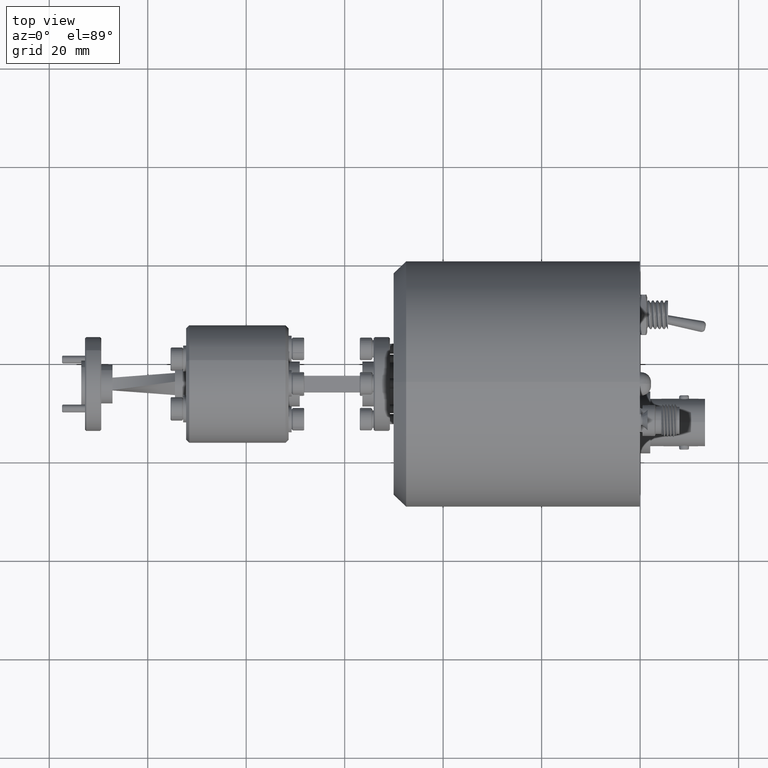
[diagram: clean part render]
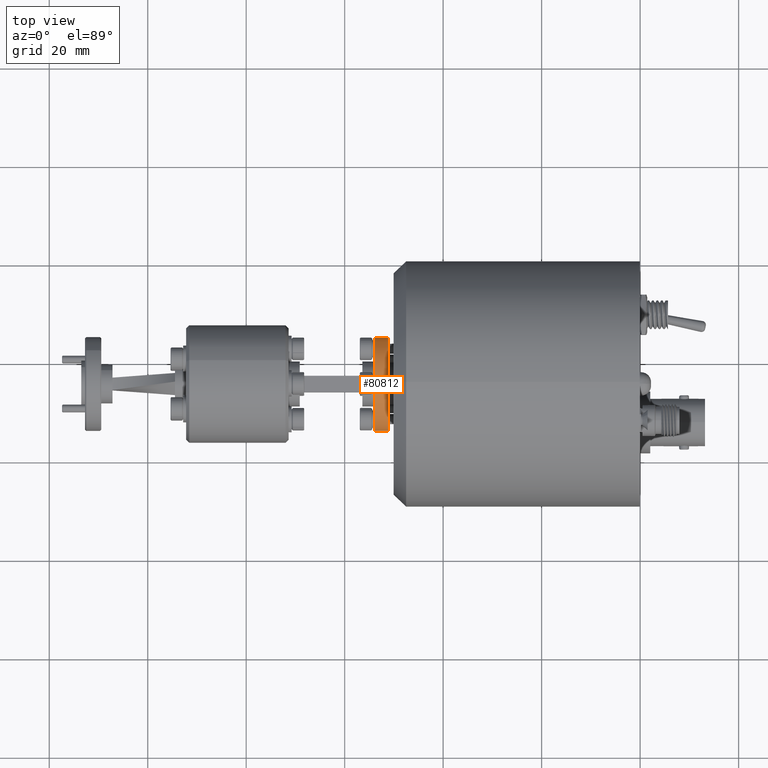
[diagram: same view with one face highlighted and labeled with its STEP entity id]
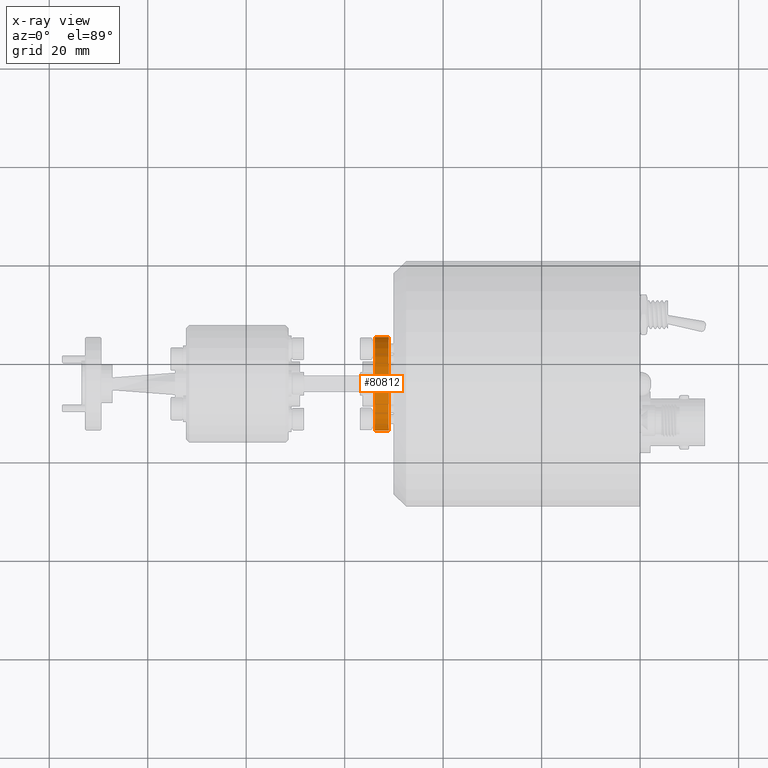
[diagram: x-ray of the same camera — body ghosted, the highlighted face saturated]
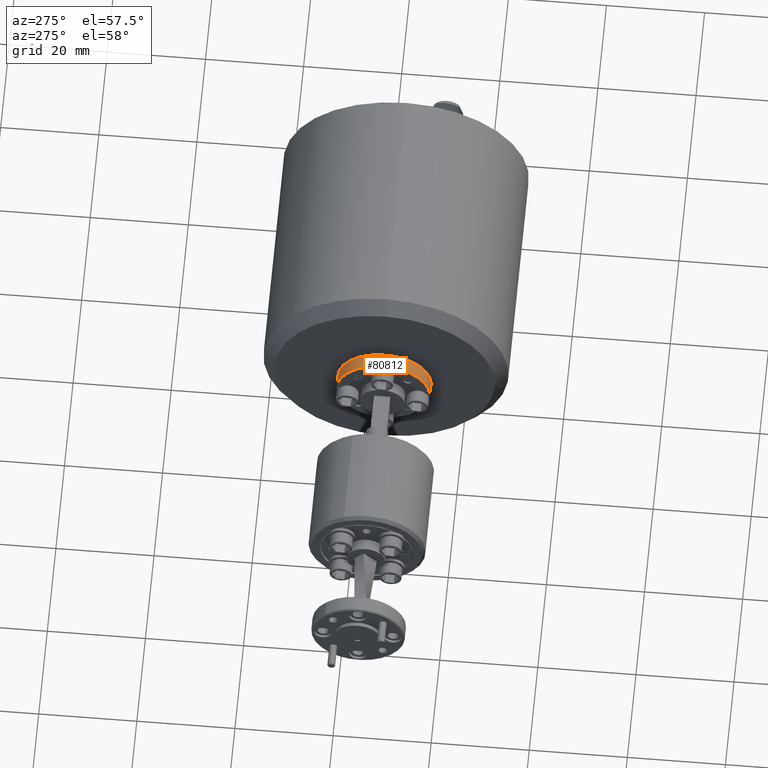
[diagram: same view with one face highlighted and labeled with its STEP entity id]
A machine part, top view. The second image highlights one B-rep face of the part: STEP entity #80812.
The next image is the same camera in x-ray: the body ghosted, the highlighted face saturated — about 0% of this face is hidden behind the body in this view.
A second angle (auxiliary view) of the same face is appended — the face is thin or edge-on in the first view.
In plain terms, the highlighted cylindrical surface (partial cylindrical patch) has radius 9.525 mm, axis along (1, 0, -0).
Its self-contained STEP definition (entity closure, byte-faithful):
#740 = ORIENTED_EDGE ( 'NONE', *, *, #49962, .T. ) ;
#8003 = CARTESIAN_POINT ( 'NONE',  ( 8.920688618866259700, 26.02844927225280000, 37.33560134325452400 ) ) ;
#8417 = CIRCLE ( 'NONE', #83313, 9.524999999999991500 ) ;
#8998 = CARTESIAN_POINT ( 'NONE',  ( 6.126688618866264600, 26.02844927225280000, 37.33560134325452400 ) ) ;
#9203 = EDGE_CURVE ( 'NONE', #101600, #49318, #8417, .T. ) ;
#10107 = CARTESIAN_POINT ( 'NONE',  ( 6.126688618866263700, 35.55344927225279200, 37.33560134325452400 ) ) ;
#18524 = DIRECTION ( 'NONE',  ( 9.106159978880884800E-017, -1.000000000000000000, 0.0000000000000000000 ) ) ;
#24617 = EDGE_CURVE ( 'NONE', #76101, #101600, #58247, .T. ) ;
#24788 = VECTOR ( 'NONE', #55435, 1000.000000000000000 ) ;
#32651 = DIRECTION ( 'NONE',  ( -1.821231995776177000E-016, 1.000000000000000000, 0.0000000000000000000 ) ) ;
#34104 = EDGE_CURVE ( 'NONE', #64143, #49318, #60122, .T. ) ;
#36803 = ORIENTED_EDGE ( 'NONE', *, *, #34104, .F. ) ;
#37252 = ORIENTED_EDGE ( 'NONE', *, *, #9203, .T. ) ;
#37380 = CYLINDRICAL_SURFACE ( 'NONE', #50995, 9.524999999999991500 ) ;
#38893 = DIRECTION ( 'NONE',  ( 1.000000000000000000, 1.224646799147353500E-016, -0.0000000000000000000 ) ) ;
#43093 = VECTOR ( 'NONE', #38893, 1000.000000000000000 ) ;
#43545 = AXIS2_PLACEMENT_3D ( 'NONE', #10107, #66515, #18524 ) ;
#47339 = CARTESIAN_POINT ( 'NONE',  ( -15.46331138113847500, 45.07844927225278300, 37.33560134325452400 ) ) ;
#49318 = VERTEX_POINT ( 'NONE', #98077 ) ;
#49962 = EDGE_CURVE ( 'NONE', #64143, #76101, #62983, .T. ) ;
#50772 = ORIENTED_EDGE ( 'NONE', *, *, #24617, .T. ) ;
#50995 = AXIS2_PLACEMENT_3D ( 'NONE', #104227, #56248, #32651 ) ;
#53263 = CARTESIAN_POINT ( 'NONE',  ( 6.126688618866262800, 45.07844927225278300, 37.33560134325452400 ) ) ;
#55435 = DIRECTION ( 'NONE',  ( 1.000000000000000000, 1.224646799147353500E-016, -0.0000000000000000000 ) ) ;
#56248 = DIRECTION ( 'NONE',  ( 1.000000000000000000, 1.224646799147353500E-016, -0.0000000000000000000 ) ) ;
#58247 = LINE ( 'NONE', #88323, #43093 ) ;
#59240 = CARTESIAN_POINT ( 'NONE',  ( 8.920688618866258000, 35.55344927225279200, 37.33560134325452400 ) ) ;
#60122 = LINE ( 'NONE', #47339, #24788 ) ;
#62983 = CIRCLE ( 'NONE', #43545, 9.524999999999991500 ) ;
#64143 = VERTEX_POINT ( 'NONE', #53263 ) ;
#66515 = DIRECTION ( 'NONE',  ( 1.000000000000000000, 1.224646799147353000E-016, -0.0000000000000000000 ) ) ;
#76101 = VERTEX_POINT ( 'NONE', #8998 ) ;
#80812 = ADVANCED_FACE ( 'NONE', ( #81571 ), #37380, .T. ) ;
#81571 = FACE_OUTER_BOUND ( 'NONE', #97105, .T. ) ;
#83313 = AXIS2_PLACEMENT_3D ( 'NONE', #59240, #91077, #91762 ) ;
#88323 = CARTESIAN_POINT ( 'NONE',  ( -15.46331138113847100, 26.02844927225280000, 37.33560134325452400 ) ) ;
#91077 = DIRECTION ( 'NONE',  ( -1.000000000000000000, -1.224646799147339200E-016, 0.0000000000000000000 ) ) ;
#91762 = DIRECTION ( 'NONE',  ( -1.821231995776177000E-016, 1.000000000000000000, 0.0000000000000000000 ) ) ;
#97105 = EDGE_LOOP ( 'NONE', ( #740, #50772, #37252, #36803 ) ) ;
#98077 = CARTESIAN_POINT ( 'NONE',  ( 8.920688618866256200, 45.07844927225278300, 37.33560134325452400 ) ) ;
#101600 = VERTEX_POINT ( 'NONE', #8003 ) ;
#104227 = CARTESIAN_POINT ( 'NONE',  ( -15.46331138113847300, 35.55344927225279200, 37.33560134325452400 ) ) ;